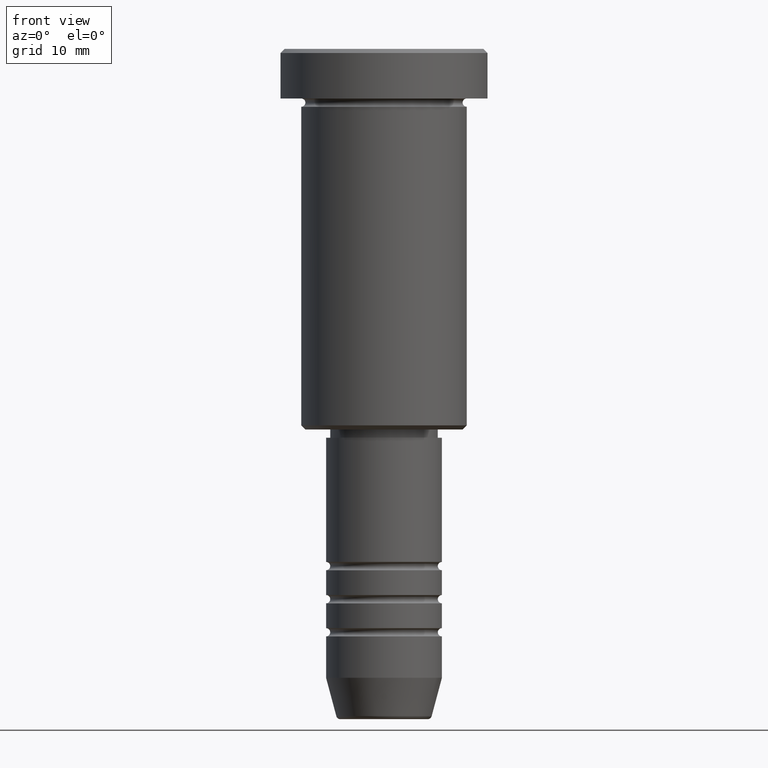
[diagram: clean part render]
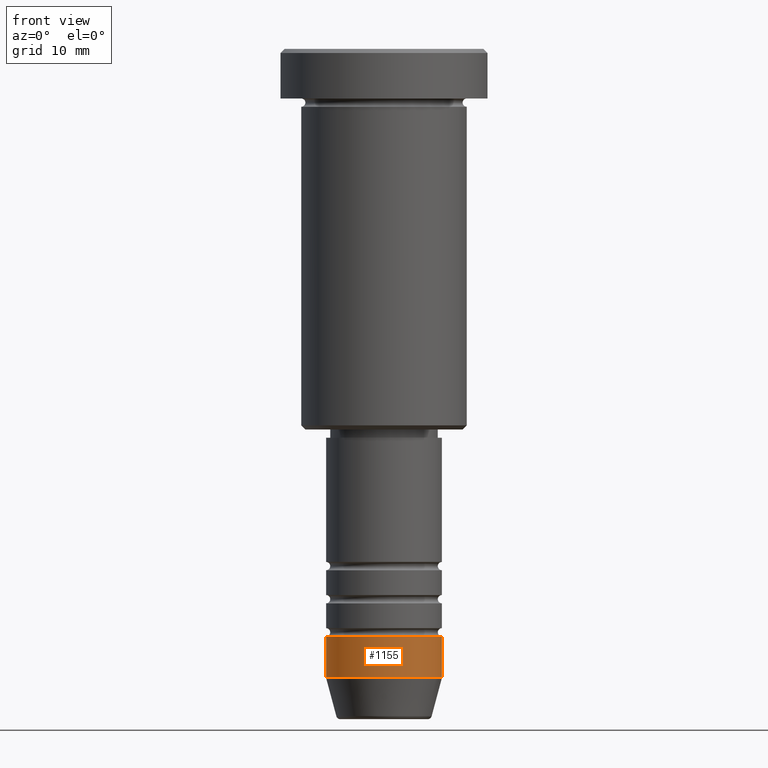
[diagram: same view with one face highlighted and labeled with its STEP entity id]
A machine part, front view. The second image highlights one B-rep face of the part: STEP entity #1155.
In plain terms, the highlighted cylindrical surface (partial cylindrical patch) has radius 7 mm, axis along (-0, -0, 1).
Its self-contained STEP definition (entity closure, byte-faithful):
#58 = ORIENTED_EDGE ( 'NONE', *, *, #402, .F. ) ;
#60 = AXIS2_PLACEMENT_3D ( 'NONE', #317, #412, #241 ) ;
#74 = DIRECTION ( 'NONE',  ( -0.000000000000000000, -0.000000000000000000, 1.000000000000000000 ) ) ;
#105 = CARTESIAN_POINT ( 'NONE',  ( 0.000000000000000000, 0.000000000000000000, 0.000000000000000000 ) ) ;
#116 = CARTESIAN_POINT ( 'NONE',  ( -7.000000000000000000, 8.572527594031473190E-16, -76.00000000000001421 ) ) ;
#155 = ORIENTED_EDGE ( 'NONE', *, *, #257, .T. ) ;
#181 = CARTESIAN_POINT ( 'NONE',  ( -7.000000000000000000, 8.572527594031473190E-16, -71.00000000000001421 ) ) ;
#199 = CARTESIAN_POINT ( 'NONE',  ( 7.000000000000000000, 0.000000000000000000, 0.000000000000000000 ) ) ;
#216 = FACE_OUTER_BOUND ( 'NONE', #1169, .T. ) ;
#229 = VERTEX_POINT ( 'NONE', #116 ) ;
#241 = DIRECTION ( 'NONE',  ( 1.000000000000000000, 0.000000000000000000, 0.000000000000000000 ) ) ;
#244 = VECTOR ( 'NONE', #74, 1000.000000000000000 ) ;
#257 = EDGE_CURVE ( 'NONE', #513, #869, #1021, .T. ) ;
#317 = CARTESIAN_POINT ( 'NONE',  ( 0.000000000000000000, 0.000000000000000000, -76.00000000000001421 ) ) ;
#402 = EDGE_CURVE ( 'NONE', #901, #869, #1101, .T. ) ;
#412 = DIRECTION ( 'NONE',  ( -0.000000000000000000, -0.000000000000000000, 1.000000000000000000 ) ) ;
#429 = CARTESIAN_POINT ( 'NONE',  ( 7.000000000000000000, 0.000000000000000000, -76.00000000000001421 ) ) ;
#469 = DIRECTION ( 'NONE',  ( 1.000000000000000000, 0.000000000000000000, 0.000000000000000000 ) ) ;
#513 = VERTEX_POINT ( 'NONE', #429 ) ;
#542 = EDGE_CURVE ( 'NONE', #229, #901, #827, .T. ) ;
#573 = DIRECTION ( 'NONE',  ( -0.000000000000000000, -0.000000000000000000, 1.000000000000000000 ) ) ;
#580 = DIRECTION ( 'NONE',  ( -0.000000000000000000, -0.000000000000000000, 1.000000000000000000 ) ) ;
#588 = CYLINDRICAL_SURFACE ( 'NONE', #1082, 7.000000000000000000 ) ;
#646 = CARTESIAN_POINT ( 'NONE',  ( -7.000000000000000000, 8.572527594031473190E-16, 0.000000000000000000 ) ) ;
#695 = AXIS2_PLACEMENT_3D ( 'NONE', #858, #580, #772 ) ;
#772 = DIRECTION ( 'NONE',  ( 1.000000000000000000, 0.000000000000000000, 0.000000000000000000 ) ) ;
#819 = VECTOR ( 'NONE', #839, 1000.000000000000000 ) ;
#827 = LINE ( 'NONE', #646, #244 ) ;
#839 = DIRECTION ( 'NONE',  ( -0.000000000000000000, -0.000000000000000000, 1.000000000000000000 ) ) ;
#841 = EDGE_CURVE ( 'NONE', #229, #513, #1145, .T. ) ;
#843 = ORIENTED_EDGE ( 'NONE', *, *, #841, .T. ) ;
#858 = CARTESIAN_POINT ( 'NONE',  ( 0.000000000000000000, 0.000000000000000000, -71.00000000000001421 ) ) ;
#869 = VERTEX_POINT ( 'NONE', #895 ) ;
#895 = CARTESIAN_POINT ( 'NONE',  ( 7.000000000000000000, 0.000000000000000000, -71.00000000000001421 ) ) ;
#901 = VERTEX_POINT ( 'NONE', #181 ) ;
#1021 = LINE ( 'NONE', #199, #819 ) ;
#1022 = ORIENTED_EDGE ( 'NONE', *, *, #542, .F. ) ;
#1082 = AXIS2_PLACEMENT_3D ( 'NONE', #105, #573, #469 ) ;
#1101 = CIRCLE ( 'NONE', #695, 7.000000000000000000 ) ;
#1145 = CIRCLE ( 'NONE', #60, 7.000000000000000000 ) ;
#1155 = ADVANCED_FACE ( 'NONE', ( #216 ), #588, .T. ) ;
#1169 = EDGE_LOOP ( 'NONE', ( #1022, #843, #155, #58 ) ) ;